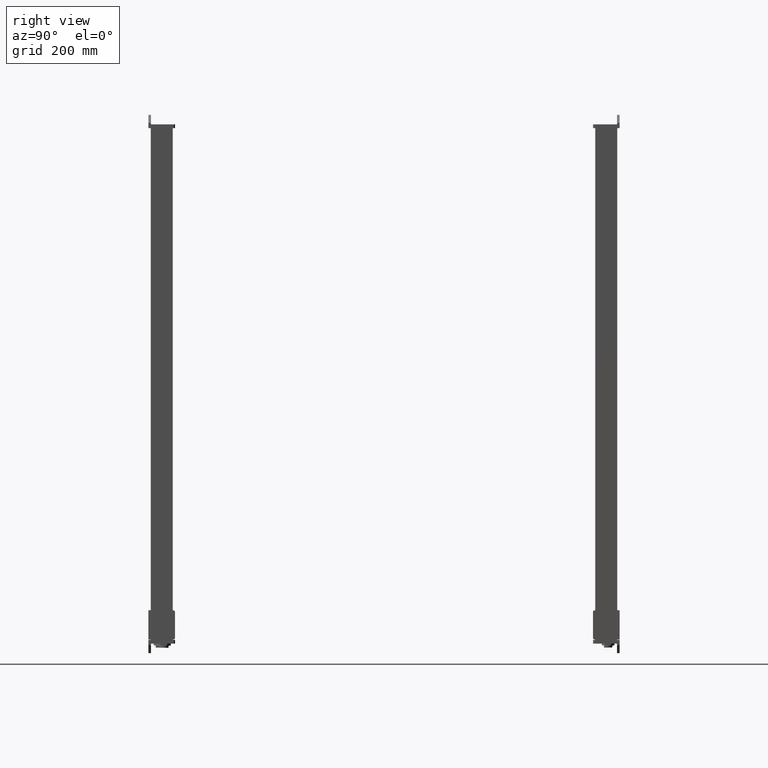
[diagram: clean part render]
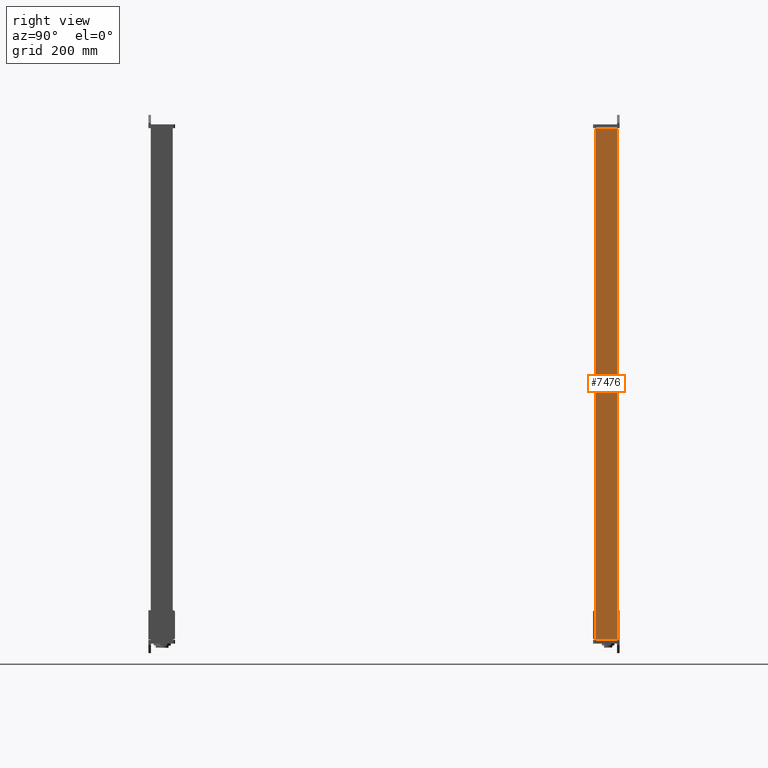
[diagram: same view with one face highlighted and labeled with its STEP entity id]
A machine part, right view. The second image highlights one B-rep face of the part: STEP entity #7476.
In plain terms, the highlighted planar face has unit normal (1, 0, 0).
Its self-contained STEP definition (entity closure, byte-faithful):
#7239=CARTESIAN_POINT('Line Origine',(0.,0.,605.5)) ;
#7243=CARTESIAN_POINT('Vertex',(0.,0.,0.)) ;
#7245=CARTESIAN_POINT('Vertex',(0.,0.,1211.)) ;
#7433=CARTESIAN_POINT('Vertex',(3.5527136788E-015,52.,0.)) ;
#7436=CARTESIAN_POINT('Line Origine',(7.1054273576E-015,52.,605.5)) ;
#7440=CARTESIAN_POINT('Vertex',(3.5527136788E-015,52.,1211.)) ;
#7455=CARTESIAN_POINT('Axis2P3D Location',(0.,52.,0.)) ;
#7460=CARTESIAN_POINT('Line Origine',(0.,26.,0.)) ;
#7465=CARTESIAN_POINT('Line Origine',(0.,26.,1211.)) ;
#7240=DIRECTION('Vector Direction',(0.,0.,1.)) ;
#7437=DIRECTION('Vector Direction',(0.,0.,1.)) ;
#7456=DIRECTION('Axis2P3D Direction',(-1.,0.,0.)) ;
#7457=DIRECTION('Axis2P3D XDirection',(0.,-1.,0.)) ;
#7461=DIRECTION('Vector Direction',(0.,-1.,0.)) ;
#7466=DIRECTION('Vector Direction',(0.,-1.,0.)) ;
#7458=AXIS2_PLACEMENT_3D('Plane Axis2P3D',#7455,#7456,#7457) ;
#7471=ORIENTED_EDGE('',*,*,#7442,.F.) ;
#7472=ORIENTED_EDGE('',*,*,#7464,.T.) ;
#7473=ORIENTED_EDGE('',*,*,#7247,.T.) ;
#7474=ORIENTED_EDGE('',*,*,#7469,.F.) ;
#7241=VECTOR('Line Direction',#7240,1.) ;
#7438=VECTOR('Line Direction',#7437,1.) ;
#7462=VECTOR('Line Direction',#7461,1.) ;
#7467=VECTOR('Line Direction',#7466,1.) ;
#7476=ADVANCED_FACE('PartBody',(#7475),#7459,.T.) ;
#7247=EDGE_CURVE('',#7244,#7246,#7242,.T.) ;
#7442=EDGE_CURVE('',#7434,#7441,#7439,.T.) ;
#7464=EDGE_CURVE('',#7434,#7244,#7463,.T.) ;
#7469=EDGE_CURVE('',#7441,#7246,#7468,.T.) ;
#7470=EDGE_LOOP('',(#7471,#7472,#7473,#7474)) ;
#7475=FACE_OUTER_BOUND('',#7470,.T.) ;
#7242=LINE('Line',#7239,#7241) ;
#7439=LINE('Line',#7436,#7438) ;
#7463=LINE('Line',#7460,#7462) ;
#7468=LINE('Line',#7465,#7467) ;
#7459=PLANE('Plane',#7458) ;
#7244=VERTEX_POINT('',#7243) ;
#7246=VERTEX_POINT('',#7245) ;
#7434=VERTEX_POINT('',#7433) ;
#7441=VERTEX_POINT('',#7440) ;